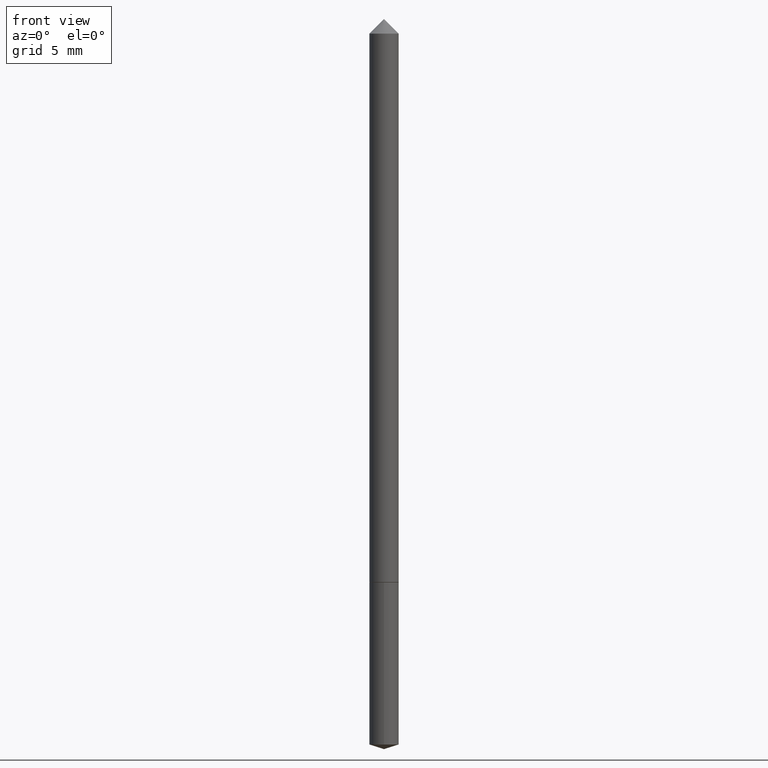
[diagram: clean part render]
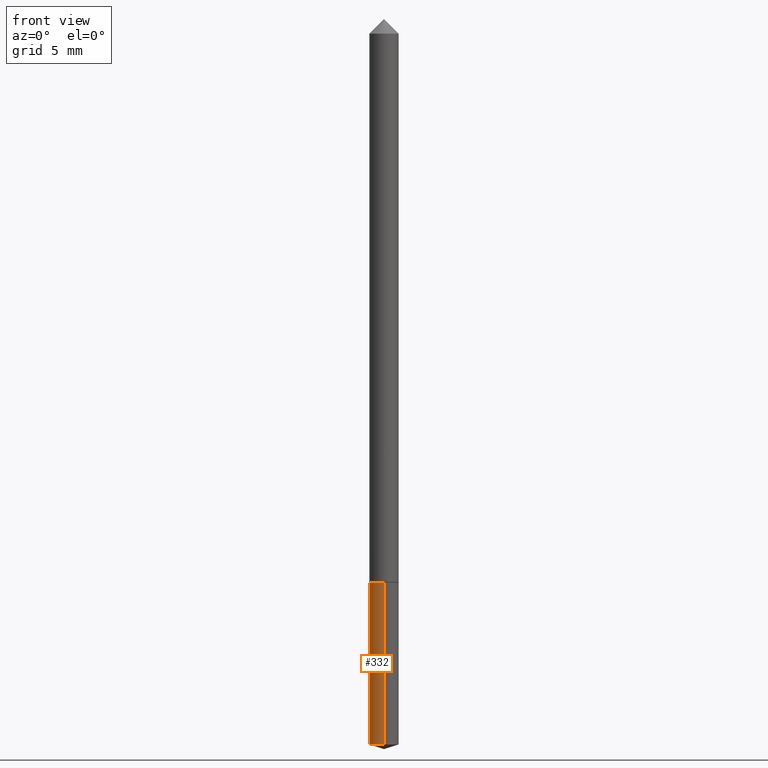
[diagram: same view with one face highlighted and labeled with its STEP entity id]
A machine part, front view. The second image highlights one B-rep face of the part: STEP entity #332.
In plain terms, the highlighted cylindrical surface (edge-blend (fillet) strip) has radius 0.5994 mm, axis along (-0, 0, 1).
Its self-contained STEP definition (entity closure, byte-faithful):
#11 = DIRECTION ( 'NONE',  ( -6.982962677686265133E-15, -1.000000000000000000, 5.787813545898861862E-15 ) ) ;
#13 = CARTESIAN_POINT ( 'NONE',  ( 2.233446660688885291E-29, -3.188769906765445031E-15, -0.9133000000000001117 ) ) ;
#26 = VERTEX_POINT ( 'NONE', #136 ) ;
#47 = VERTEX_POINT ( 'NONE', #277 ) ;
#61 = DIRECTION ( 'NONE',  ( -2.445630756133418783E-29, 3.491249417299586917E-15, 1.000000000000000000 ) ) ;
#72 = DIRECTION ( 'NONE',  ( -2.445630756133418783E-29, 3.491249417299586917E-15, 1.000000000000000000 ) ) ;
#84 = AXIS2_PLACEMENT_3D ( 'NONE', #117, #61, #139 ) ;
#97 = CYLINDRICAL_SURFACE ( 'NONE', #152, 0.02360000000000000292 ) ;
#102 = DIRECTION ( 'NONE',  ( -6.982962677686265133E-15, -1.000000000000000000, 5.787813545898861862E-15 ) ) ;
#117 = CARTESIAN_POINT ( 'NONE',  ( 2.870188512976699253E-29, -4.097747934292677684E-15, -1.173658948582456230 ) ) ;
#119 = CARTESIAN_POINT ( 'NONE',  ( -1.647979191933735680E-16, -0.02360000000000319134, -0.9132999999999998897 ) ) ;
#123 = LINE ( 'NONE', #262, #142 ) ;
#127 = ORIENTED_EDGE ( 'NONE', *, *, #265, .T. ) ;
#136 = CARTESIAN_POINT ( 'NONE',  ( 1.676880856394123348E-16, 0.02359999999999681450, -0.9133000000000002228 ) ) ;
#139 = DIRECTION ( 'NONE',  ( -6.982962677686265133E-15, -1.000000000000000000, 5.787813545898861862E-15 ) ) ;
#142 = VECTOR ( 'NONE', #72, 39.37007874015748143 ) ;
#152 = AXIS2_PLACEMENT_3D ( 'NONE', #13, #345, #102 ) ;
#200 = CARTESIAN_POINT ( 'NONE',  ( 2.233446660688885291E-29, -3.188769906765445031E-15, -0.9133000000000001117 ) ) ;
#206 = CARTESIAN_POINT ( 'NONE',  ( -1.647979191933671339E-16, -0.02360000000000408993, -1.173658948582456008 ) ) ;
#214 = CARTESIAN_POINT ( 'NONE',  ( 1.676880856394122855E-16, 0.02359999999999589509, -1.173658948582456452 ) ) ;
#216 = ORIENTED_EDGE ( 'NONE', *, *, #220, .F. ) ;
#220 = EDGE_CURVE ( 'NONE', #26, #47, #293, .T. ) ;
#224 = AXIS2_PLACEMENT_3D ( 'NONE', #200, #316, #11 ) ;
#229 = EDGE_CURVE ( 'NONE', #320, #273, #240, .T. ) ;
#232 = EDGE_CURVE ( 'NONE', #320, #26, #123, .T. ) ;
#239 = EDGE_LOOP ( 'NONE', ( #296, #300, #127, #216 ) ) ;
#240 = CIRCLE ( 'NONE', #84, 0.02360000000000000292 ) ;
#262 = CARTESIAN_POINT ( 'NONE',  ( 1.676880856394059499E-16, 0.02359999999999681450, -0.9133000000000002228 ) ) ;
#263 = DIRECTION ( 'NONE',  ( -2.445630756133418783E-29, 3.491249417299586917E-15, 1.000000000000000000 ) ) ;
#265 = EDGE_CURVE ( 'NONE', #273, #47, #327, .T. ) ;
#273 = VERTEX_POINT ( 'NONE', #206 ) ;
#277 = CARTESIAN_POINT ( 'NONE',  ( -1.647979191933735680E-16, -0.02360000000000319134, -0.9132999999999998897 ) ) ;
#293 = CIRCLE ( 'NONE', #224, 0.02360000000000000292 ) ;
#296 = ORIENTED_EDGE ( 'NONE', *, *, #232, .F. ) ;
#300 = ORIENTED_EDGE ( 'NONE', *, *, #229, .T. ) ;
#316 = DIRECTION ( 'NONE',  ( -2.445630756133418783E-29, 3.491249417299586917E-15, 1.000000000000000000 ) ) ;
#320 = VERTEX_POINT ( 'NONE', #214 ) ;
#327 = LINE ( 'NONE', #119, #342 ) ;
#332 = ADVANCED_FACE ( 'NONE', ( #356 ), #97, .T. ) ;
#342 = VECTOR ( 'NONE', #263, 39.37007874015748143 ) ;
#345 = DIRECTION ( 'NONE',  ( -2.445630756133418783E-29, 3.491249417299586917E-15, 1.000000000000000000 ) ) ;
#356 = FACE_OUTER_BOUND ( 'NONE', #239, .T. ) ;